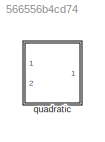
MODEL slx_566556b4cd74
KIND library
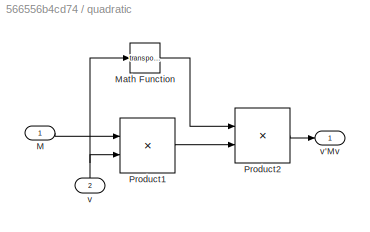
BLOCK [SubSystem] quadratic
  FunctionWithSeparateData = off
  MaskHideContents = off
  MinAlgLoopOccurrences = off
  Opaque = off
  Ports = [2, 1]
  PropExecContextOutsideSubsystem = off
  RTWSystemCode = Auto
  RequestExecContextInheritance = off
BLOCK [Inport] quadratic/M
  IconDisplay = Port number
BLOCK [Math] quadratic/Math Function
  Operator = transpose
  Ports = [1, 1]
BLOCK [Product] quadratic/Product1
  InputSameDT = off
  Multiplication = Matrix(*)
  OutDataTypeStr = Inherit: Inherit via internal rule
  Ports = [2, 1]
  SaturateOnIntegerOverflow = off
BLOCK [Product] quadratic/Product2
  InputSameDT = off
  Multiplication = Matrix(*)
  OutDataTypeStr = Inherit: Inherit via internal rule
  Ports = [2, 1]
  SaturateOnIntegerOverflow = off
BLOCK [Inport] quadratic/v
  IconDisplay = Port number
  Port = 2
BLOCK [Outport] quadratic/v'Mv
  IconDisplay = Port number
LINE quadratic/M:1 -> quadratic/Product1:1
LINE quadratic/Math Function:1 -> quadratic/Product2:1
LINE quadratic/Product1:1 -> quadratic/Product2:2
LINE quadratic/Product2:1 -> quadratic/v'Mv:1
NET quadratic/v:1 -> quadratic/Math Function:1, quadratic/Product1:2
note: NET lines group one-source signal fan-out (src -> all destinations, sorted); 1:1 wires keep LINE
